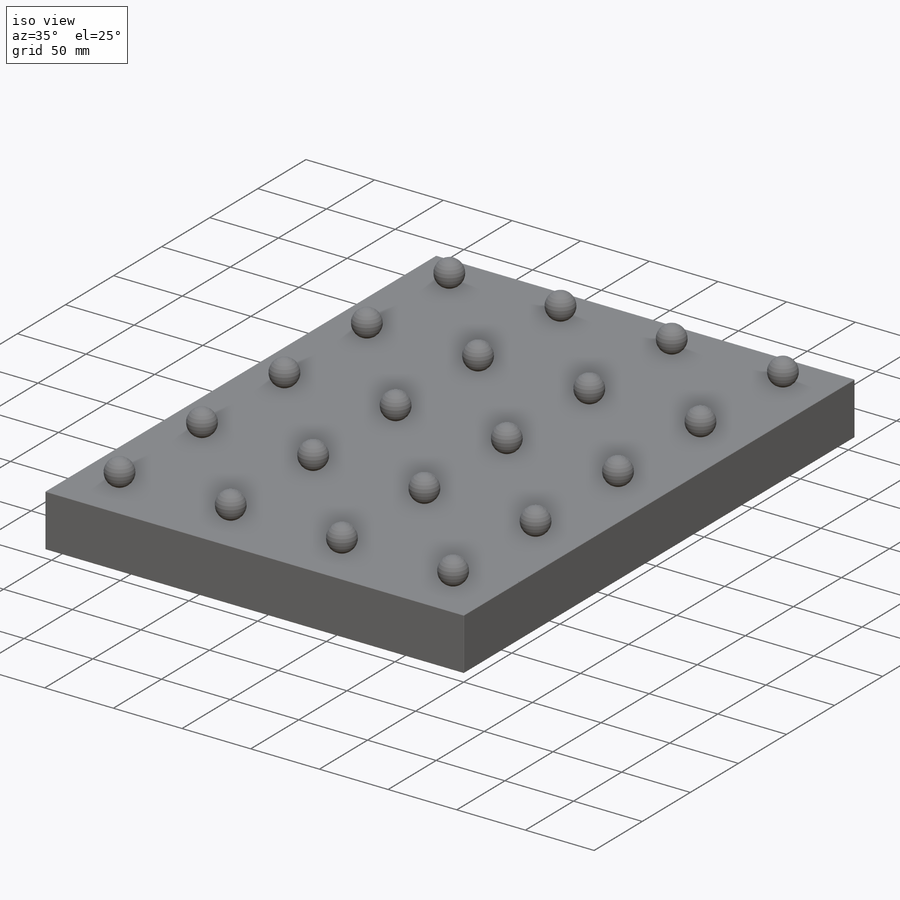
[diagram: iso view]
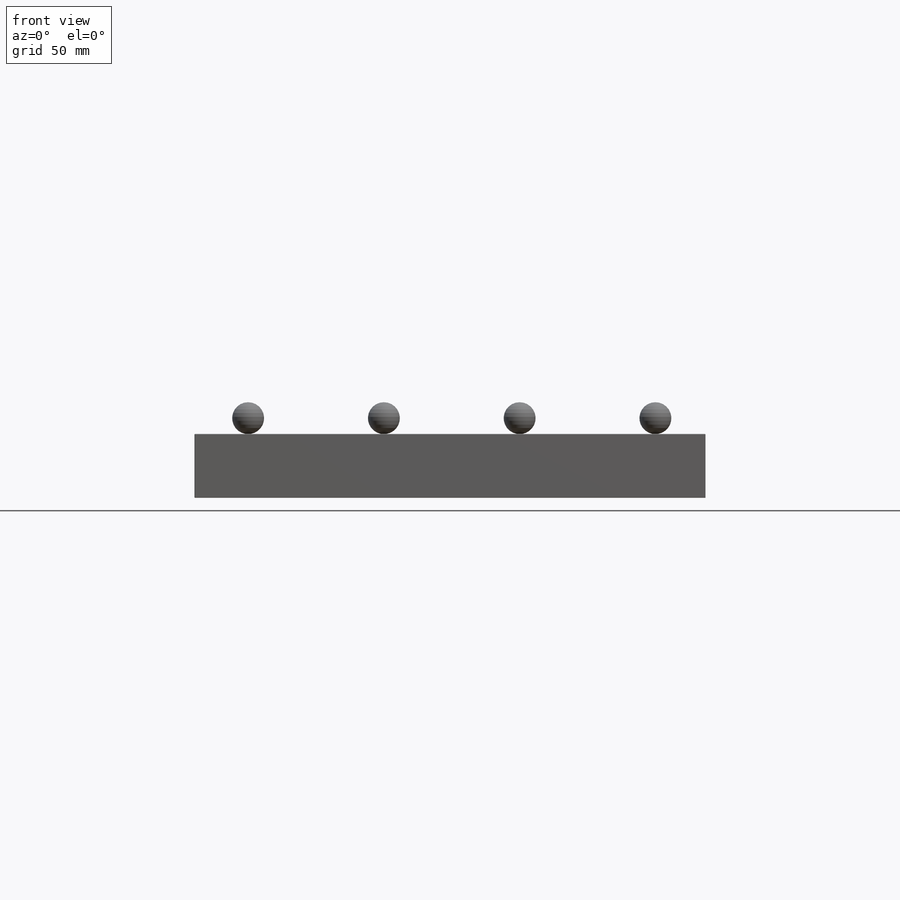
[diagram: front view]
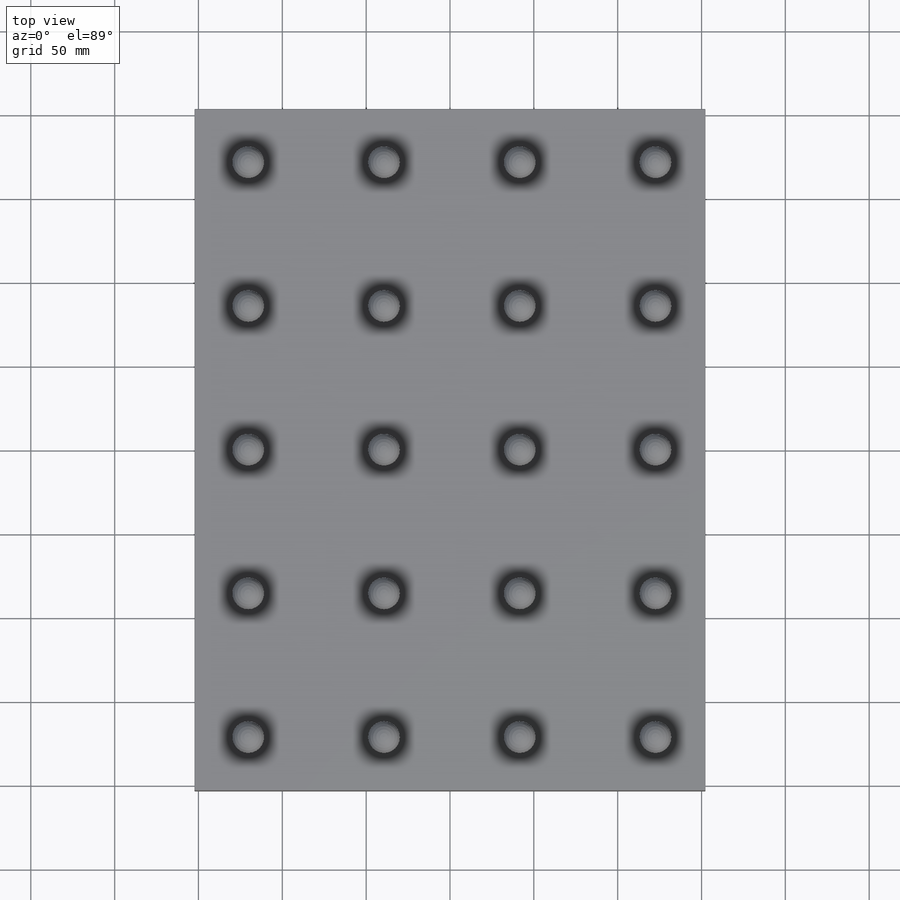
[diagram: top view]
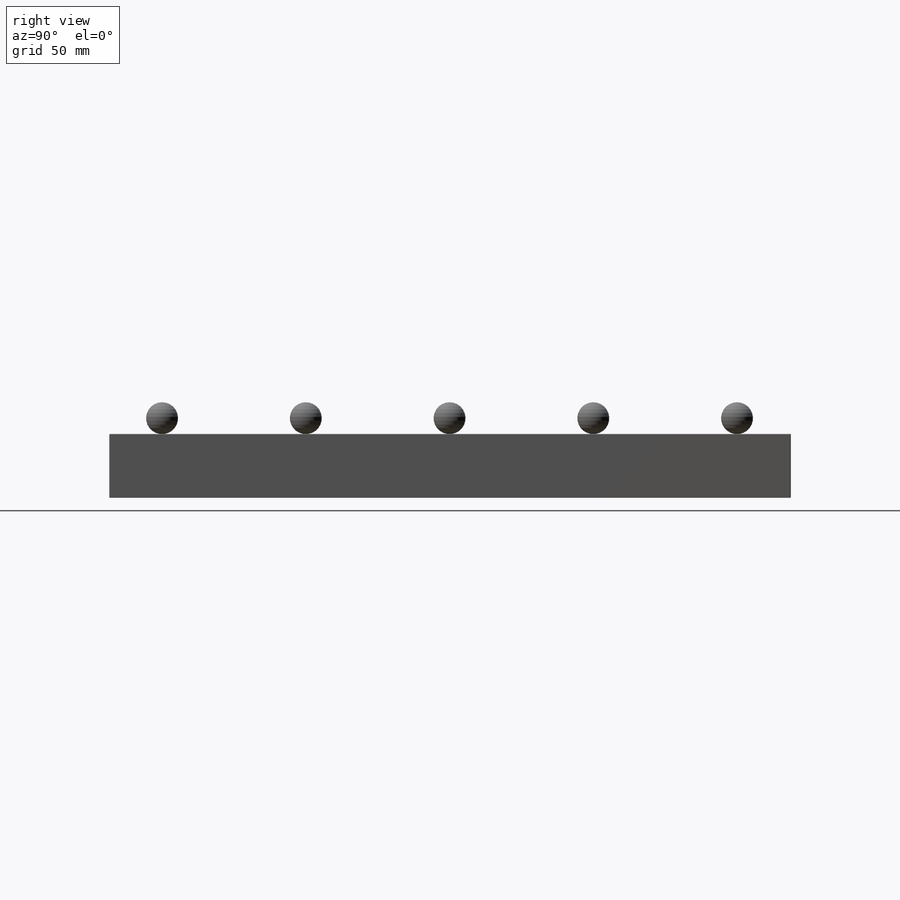
[diagram: right view]
SOLIDWORKS PART (.sldprt)
format: sldprt  version: not decoded by parser v0  size: 1,466,880 bytes
history: native  units: mm
features: sketch x9, plane x4, cut_extrude x4, fillet x4, extrude x2, mirror x2, material x1, chamfer x1, revolve x1, pattern_linear x1 + 3 further entries (+9 scaffold rows collapsed)
feature tree (41):
  scaffold x9  (default folders/planes/origin — collapsed)
  material  "Material <not specified>"
  plane  "Plane X-Y"
  plane  "Plane X-Z"
  plane  "Plane Y-Z"
  "Axis - Y"
  "Axis - Z"
  sketch  "Sketch1"  dims[D1=304.8mm D2=406.4mm]
  extrude  "Extrude1"  Depth=38.1mm
  sketch  "Sketch7"  dims[D1=0.0mm]
  extrude  "Extrude2"  Depth=22.225mm
  sketch  "Sketch2"  dims[D1=12.7mm D2=12.7mm D3=25.4mm D4=~5.55625mm D5=63.5mm]
  cut_extrude  "Cut-Extrude1"  [1 undecoded]
  mirror  "Mirror1"
  sketch  "Sketch3"  dims[D1=12.7mm D2=12.7mm D3=25.4mm D4=~5.55625mm D5=76.2mm]
  cut_extrude  "Cut-Extrude2"  [1 undecoded]
  mirror  "Mirror2"
  sketch  "Sketch8"  dims[c1.D1=10.4775mm c1.D2=10.4775mm c1.D3=49.022mm c1.D4=49.022mm c1.D5=78.74mm c1.D6=92.71mm c2.D5=53.975mm]
  sketch  "Sketch9"  dims[c1.D11=25.4mm c1.D16=25.4mm c1.D17=25.4mm c2.D16=25.4mm c2.D17=20.32mm c2.D13=10.16mm c2.D18=12.065mm c2.D10=53.975mm c2.D12=41.275mm c3.D13=55.5752mm c3.D14=25.4mm c3.D15=25.4mm c3.D17=~59.652667mm c3.D16=36.195mm c3.D1=0.0mm c3.D2=0.0mm c3.D3=0.0mm c3.D4=0.0mm c3.D5=0.0mm c3.D6=0.0mm c3.D7=0.0mm c3.D8=0.0mm c3.D9=0.0mm]
  cut_extrude  "Cut-Extrude3"  Depth=23.495mm
  sketch  "Sketch10"  dims[D1=14.605mm D2=14.605mm D3=6.985mm D4=6.985mm D5=6.985mm D6=6.985mm]
  cut_extrude  "Cut-Extrude4"  Depth=11.43mm
  fillet  "Fillet1"  Radius=9.525mm
  fillet  "Fillet2"  Radius=4.7752mm
  fillet  "Fillet3"  Radius=4.7752mm
  fillet  "Fillet4"  Radius=4.7752mm
  chamfer  "Chamfer1"  Distance=0.254mm Angle=45deg
  sketch  "Sketch11"  dims[D1=31.75mm D2=31.75mm]
  "Axis1"
  plane  "Plane1"
  sketch  "Sketch12"  dims[D1=9.525mm D2=3.175mm]
  revolve  "Revolve1"  Angle=360deg
  pattern_linear  "LPattern1"  Count1=4 Count2=5 Spacing1=80.9625mm Spacing2=85.725mm
decode coverage: 20 of 24 modeling features carry decoded parameters; 3 rows unclassified (native names shown)
note: ~ marks probable driven/reference dimensions
note: 2 parameter values undecoded
note: suppression state not decoded; provenance and decode notes live in map.json
